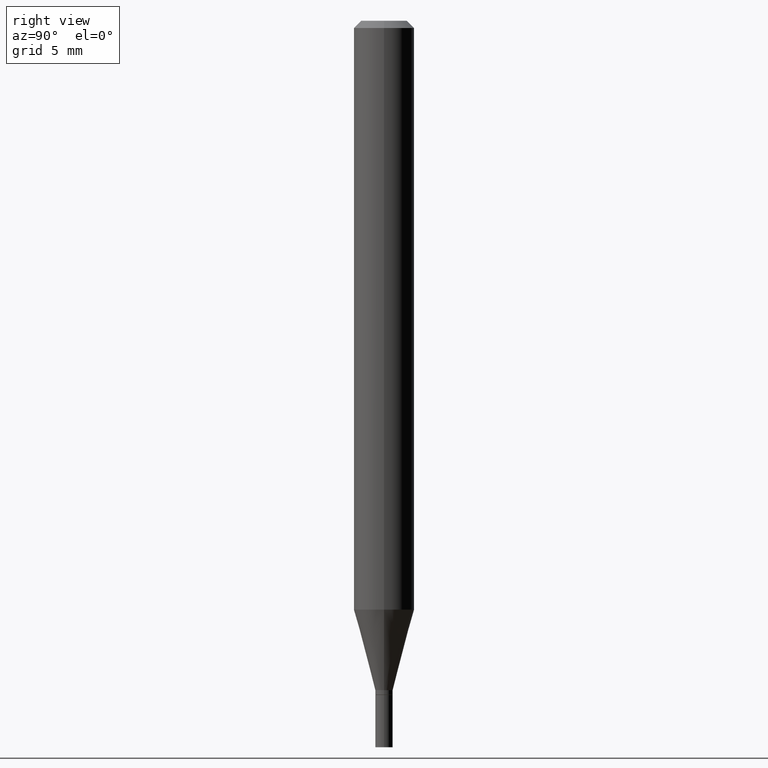
[diagram: clean part render]
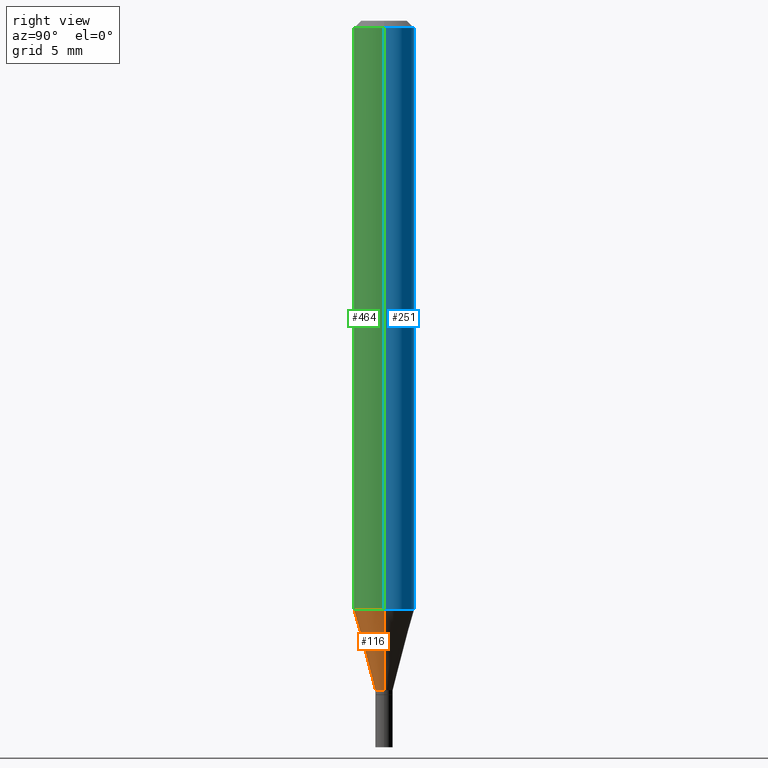
[diagram: same view with three faces highlighted in distinct colors, each labeled with its STEP entity id]
A machine part, right view with three faces highlighted in distinct colors.
Their STEP definitions:

[orange] entity #116 — the highlighted conical surface has half-angle 15 deg.
#21 = DIRECTION ( 'NONE',  ( -2.445468806185136597E-29, 3.491481338843145583E-15, 1.000000000000000000 ) ) ;
#25 = VERTEX_POINT ( 'NONE', #104 ) ;
#59 = CARTESIAN_POINT ( 'NONE',  ( -0.06250000000000001388, -3.801285834545430586E-15, -1.215923739063185183 ) ) ;
#60 = VERTEX_POINT ( 'NONE', #146 ) ;
#80 = FACE_OUTER_BOUND ( 'NONE', #276, .T. ) ;
#82 = CARTESIAN_POINT ( 'NONE',  ( -0.01799999999999991884, -4.249307676194920787E-15, -1.382000000000000117 ) ) ;
#84 = EDGE_CURVE ( 'NONE', #342, #25, #121, .T. ) ;
#86 = DIRECTION ( 'NONE',  ( 1.000000000000000000, -6.982962677686256455E-15, 0.000000000000000000 ) ) ;
#94 = ORIENTED_EDGE ( 'NONE', *, *, #370, .T. ) ;
#95 = CARTESIAN_POINT ( 'NONE',  ( -0.01799999999999991884, -4.697329517844410199E-15, -1.382000000000000117 ) ) ;
#96 = ORIENTED_EDGE ( 'NONE', *, *, #84, .F. ) ;
#103 = CARTESIAN_POINT ( 'NONE',  ( 2.973503574579014958E-29, -4.245375044395493202E-15, -1.215923739063185183 ) ) ;
#104 = CARTESIAN_POINT ( 'NONE',  ( 0.06250000000000001388, -4.681810211750884871E-15, -1.215923739063185183 ) ) ;
#110 = EDGE_CURVE ( 'NONE', #60, #25, #292, .T. ) ;
#116 = ADVANCED_FACE ( 'NONE', ( #80 ), #237, .T. ) ;
#121 = CIRCLE ( 'NONE', #166, 0.06250000000000000000 ) ;
#125 = VERTEX_POINT ( 'NONE', #82 ) ;
#146 = CARTESIAN_POINT ( 'NONE',  ( 0.01799999999999991884, -4.950920538479579759E-15, -1.382000000000000117 ) ) ;
#157 = DIRECTION ( 'NONE',  ( 1.000000000000000000, -6.982962677686256455E-15, 0.000000000000000000 ) ) ;
#166 = AXIS2_PLACEMENT_3D ( 'NONE', #103, #204, #369 ) ;
#195 = AXIS2_PLACEMENT_3D ( 'NONE', #415, #21, #157 ) ;
#204 = DIRECTION ( 'NONE',  ( -2.445468806185136597E-29, 3.491481338843145583E-15, 1.000000000000000000 ) ) ;
#211 = ORIENTED_EDGE ( 'NONE', *, *, #305, .F. ) ;
#218 = DIRECTION ( 'NONE',  ( 0.2588190451025211836, 1.565188264969622559E-15, 0.9659258262890679791 ) ) ;
#220 = DIRECTION ( 'NONE',  ( -2.445468806185136597E-29, 3.491481338843145583E-15, 1.000000000000000000 ) ) ;
#237 = CONICAL_SURFACE ( 'NONE', #382, 0.01799999999999991884, 0.2617993877991499074 ) ;
#276 = EDGE_LOOP ( 'NONE', ( #211, #94, #388, #96 ) ) ;
#292 = LINE ( 'NONE', #371, #348 ) ;
#305 = EDGE_CURVE ( 'NONE', #125, #342, #417, .T. ) ;
#342 = VERTEX_POINT ( 'NONE', #59 ) ;
#348 = VECTOR ( 'NONE', #218, 39.37007874015748854 ) ;
#369 = DIRECTION ( 'NONE',  ( 1.000000000000000000, -6.982962677686270655E-15, 0.000000000000000000 ) ) ;
#370 = EDGE_CURVE ( 'NONE', #125, #60, #407, .T. ) ;
#371 = CARTESIAN_POINT ( 'NONE',  ( 0.01799999999999991884, -4.950920538479579759E-15, -1.382000000000000117 ) ) ;
#382 = AXIS2_PLACEMENT_3D ( 'NONE', #402, #220, #86 ) ;
#388 = ORIENTED_EDGE ( 'NONE', *, *, #110, .T. ) ;
#402 = CARTESIAN_POINT ( 'NONE',  ( 3.379637890147859239E-29, -4.825227210281227557E-15, -1.382000000000000117 ) ) ;
#407 = CIRCLE ( 'NONE', #195, 0.01799999999999991884 ) ;
#415 = CARTESIAN_POINT ( 'NONE',  ( 3.379637890147859239E-29, -4.825227210281227557E-15, -1.382000000000000117 ) ) ;
#417 = LINE ( 'NONE', #95, #458 ) ;
#451 = DIRECTION ( 'NONE',  ( -0.2588190451025211836, 5.211531920934547886E-15, 0.9659258262890679791 ) ) ;
#458 = VECTOR ( 'NONE', #451, 39.37007874015748854 ) ;

[blue] entity #251 — the highlighted cylindrical surface (edge-blend (fillet) strip) has radius 1.5875 mm, axis along (-0, 0, 1).
#10 = FACE_OUTER_BOUND ( 'NONE', #165, .T. ) ;
#25 = VERTEX_POINT ( 'NONE', #104 ) ;
#33 = DIRECTION ( 'NONE',  ( -2.445468806185136877E-29, 3.491481338843145188E-15, 1.000000000000000000 ) ) ;
#59 = CARTESIAN_POINT ( 'NONE',  ( -0.06250000000000001388, -3.801285834545430586E-15, -1.215923739063185183 ) ) ;
#62 = DIRECTION ( 'NONE',  ( -2.445468806185136597E-29, 3.491481338843145583E-15, 1.000000000000000000 ) ) ;
#73 = DIRECTION ( 'NONE',  ( 1.000000000000000000, -6.982962677686270655E-15, 0.000000000000000000 ) ) ;
#88 = CARTESIAN_POINT ( 'NONE',  ( 0.000000000000000000, 0.000000000000000000, 0.000000000000000000 ) ) ;
#104 = CARTESIAN_POINT ( 'NONE',  ( 0.06250000000000001388, -4.681810211750884871E-15, -1.215923739063185183 ) ) ;
#122 = EDGE_CURVE ( 'NONE', #342, #226, #335, .T. ) ;
#128 = CARTESIAN_POINT ( 'NONE',  ( 0.06250000000000000000, -4.888073874380388472E-16, -0.01499999999999999944 ) ) ;
#135 = CARTESIAN_POINT ( 'NONE',  ( 2.973503574579014958E-29, -4.245375044395493202E-15, -1.215923739063185183 ) ) ;
#144 = ORIENTED_EDGE ( 'NONE', *, *, #437, .T. ) ;
#153 = CARTESIAN_POINT ( 'NONE',  ( -0.06250000000000000000, 4.440892098500626162E-16, -3.074334431409316114E-30 ) ) ;
#162 = CARTESIAN_POINT ( 'NONE',  ( 3.668203209277705088E-31, -5.237222008264718399E-17, -0.01499999999999999944 ) ) ;
#165 = EDGE_LOOP ( 'NONE', ( #144, #360, #193, #432 ) ) ;
#167 = CARTESIAN_POINT ( 'NONE',  ( 0.06250000000000000000, -4.364351673553916694E-16, 3.047610484872459871E-30 ) ) ;
#177 = AXIS2_PLACEMENT_3D ( 'NONE', #88, #62, #412 ) ;
#180 = CARTESIAN_POINT ( 'NONE',  ( -0.06250000000000000000, -1.704784422389007524E-15, -0.01499999999999999944 ) ) ;
#193 = ORIENTED_EDGE ( 'NONE', *, *, #372, .F. ) ;
#196 = DIRECTION ( 'NONE',  ( 1.000000000000000000, -6.982962677686266711E-15, 0.000000000000000000 ) ) ;
#225 = CYLINDRICAL_SURFACE ( 'NONE', #177, 0.06250000000000000000 ) ;
#226 = VERTEX_POINT ( 'NONE', #180 ) ;
#241 = DIRECTION ( 'NONE',  ( -2.445468806185136597E-29, 3.491481338843145583E-15, 1.000000000000000000 ) ) ;
#246 = AXIS2_PLACEMENT_3D ( 'NONE', #135, #241, #73 ) ;
#251 = ADVANCED_FACE ( 'NONE', ( #10 ), #225, .T. ) ;
#275 = DIRECTION ( 'NONE',  ( -2.445468806185136597E-29, 3.491481338843145583E-15, 1.000000000000000000 ) ) ;
#278 = CIRCLE ( 'NONE', #246, 0.06250000000000000000 ) ;
#303 = CIRCLE ( 'NONE', #347, 0.06250000000000000000 ) ;
#335 = LINE ( 'NONE', #153, #438 ) ;
#342 = VERTEX_POINT ( 'NONE', #59 ) ;
#347 = AXIS2_PLACEMENT_3D ( 'NONE', #162, #275, #196 ) ;
#355 = VECTOR ( 'NONE', #33, 39.37007874015748143 ) ;
#360 = ORIENTED_EDGE ( 'NONE', *, *, #122, .T. ) ;
#362 = VERTEX_POINT ( 'NONE', #128 ) ;
#372 = EDGE_CURVE ( 'NONE', #362, #226, #303, .T. ) ;
#394 = LINE ( 'NONE', #167, #355 ) ;
#412 = DIRECTION ( 'NONE',  ( 1.000000000000000000, -6.982962677686266711E-15, 4.876176775795935793E-29 ) ) ;
#420 = EDGE_CURVE ( 'NONE', #25, #362, #394, .T. ) ;
#432 = ORIENTED_EDGE ( 'NONE', *, *, #420, .F. ) ;
#437 = EDGE_CURVE ( 'NONE', #25, #342, #278, .T. ) ;
#438 = VECTOR ( 'NONE', #442, 39.37007874015748143 ) ;
#442 = DIRECTION ( 'NONE',  ( -2.445468806185136877E-29, 3.491481338843145188E-15, 1.000000000000000000 ) ) ;

[green] entity #464 — the highlighted cylindrical surface (edge-blend (fillet) strip) has radius 1.5875 mm, axis along (-0, 0, 1).
#25 = VERTEX_POINT ( 'NONE', #104 ) ;
#32 = AXIS2_PLACEMENT_3D ( 'NONE', #462, #68, #140 ) ;
#33 = DIRECTION ( 'NONE',  ( -2.445468806185136877E-29, 3.491481338843145188E-15, 1.000000000000000000 ) ) ;
#37 = FACE_OUTER_BOUND ( 'NONE', #250, .T. ) ;
#59 = CARTESIAN_POINT ( 'NONE',  ( -0.06250000000000001388, -3.801285834545430586E-15, -1.215923739063185183 ) ) ;
#68 = DIRECTION ( 'NONE',  ( -2.445468806185136597E-29, 3.491481338843145583E-15, 1.000000000000000000 ) ) ;
#74 = ORIENTED_EDGE ( 'NONE', *, *, #420, .T. ) ;
#84 = EDGE_CURVE ( 'NONE', #342, #25, #121, .T. ) ;
#89 = ORIENTED_EDGE ( 'NONE', *, *, #332, .F. ) ;
#91 = DIRECTION ( 'NONE',  ( 1.000000000000000000, -6.982962677686266711E-15, 0.000000000000000000 ) ) ;
#101 = AXIS2_PLACEMENT_3D ( 'NONE', #269, #126, #91 ) ;
#103 = CARTESIAN_POINT ( 'NONE',  ( 2.973503574579014958E-29, -4.245375044395493202E-15, -1.215923739063185183 ) ) ;
#104 = CARTESIAN_POINT ( 'NONE',  ( 0.06250000000000001388, -4.681810211750884871E-15, -1.215923739063185183 ) ) ;
#121 = CIRCLE ( 'NONE', #166, 0.06250000000000000000 ) ;
#122 = EDGE_CURVE ( 'NONE', #342, #226, #335, .T. ) ;
#126 = DIRECTION ( 'NONE',  ( -2.445468806185136597E-29, 3.491481338843145583E-15, 1.000000000000000000 ) ) ;
#128 = CARTESIAN_POINT ( 'NONE',  ( 0.06250000000000000000, -4.888073874380388472E-16, -0.01499999999999999944 ) ) ;
#140 = DIRECTION ( 'NONE',  ( 1.000000000000000000, -6.982962677686266711E-15, 4.876176775795935793E-29 ) ) ;
#153 = CARTESIAN_POINT ( 'NONE',  ( -0.06250000000000000000, 4.440892098500626162E-16, -3.074334431409316114E-30 ) ) ;
#166 = AXIS2_PLACEMENT_3D ( 'NONE', #103, #204, #369 ) ;
#167 = CARTESIAN_POINT ( 'NONE',  ( 0.06250000000000000000, -4.364351673553916694E-16, 3.047610484872459871E-30 ) ) ;
#172 = ORIENTED_EDGE ( 'NONE', *, *, #122, .F. ) ;
#180 = CARTESIAN_POINT ( 'NONE',  ( -0.06250000000000000000, -1.704784422389007524E-15, -0.01499999999999999944 ) ) ;
#204 = DIRECTION ( 'NONE',  ( -2.445468806185136597E-29, 3.491481338843145583E-15, 1.000000000000000000 ) ) ;
#210 = CYLINDRICAL_SURFACE ( 'NONE', #32, 0.06250000000000000000 ) ;
#226 = VERTEX_POINT ( 'NONE', #180 ) ;
#250 = EDGE_LOOP ( 'NONE', ( #172, #383, #74, #89 ) ) ;
#253 = CIRCLE ( 'NONE', #101, 0.06250000000000000000 ) ;
#269 = CARTESIAN_POINT ( 'NONE',  ( 3.668203209277705088E-31, -5.237222008264718399E-17, -0.01499999999999999944 ) ) ;
#332 = EDGE_CURVE ( 'NONE', #226, #362, #253, .T. ) ;
#335 = LINE ( 'NONE', #153, #438 ) ;
#342 = VERTEX_POINT ( 'NONE', #59 ) ;
#355 = VECTOR ( 'NONE', #33, 39.37007874015748143 ) ;
#362 = VERTEX_POINT ( 'NONE', #128 ) ;
#369 = DIRECTION ( 'NONE',  ( 1.000000000000000000, -6.982962677686270655E-15, 0.000000000000000000 ) ) ;
#383 = ORIENTED_EDGE ( 'NONE', *, *, #84, .T. ) ;
#394 = LINE ( 'NONE', #167, #355 ) ;
#420 = EDGE_CURVE ( 'NONE', #25, #362, #394, .T. ) ;
#438 = VECTOR ( 'NONE', #442, 39.37007874015748143 ) ;
#442 = DIRECTION ( 'NONE',  ( -2.445468806185136877E-29, 3.491481338843145188E-15, 1.000000000000000000 ) ) ;
#462 = CARTESIAN_POINT ( 'NONE',  ( 0.000000000000000000, 0.000000000000000000, 0.000000000000000000 ) ) ;
#464 = ADVANCED_FACE ( 'NONE', ( #37 ), #210, .T. ) ;